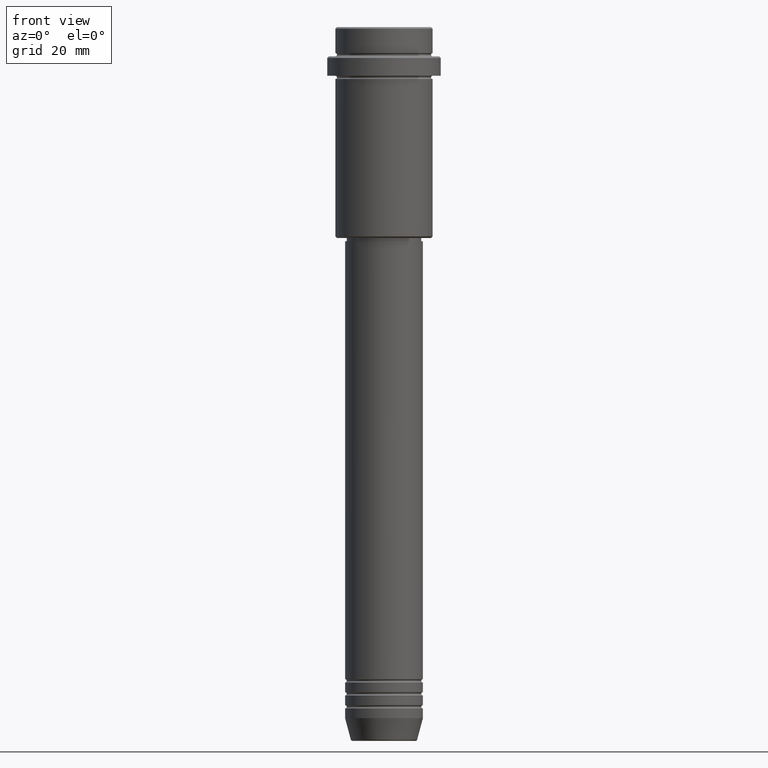
[diagram: clean part render]
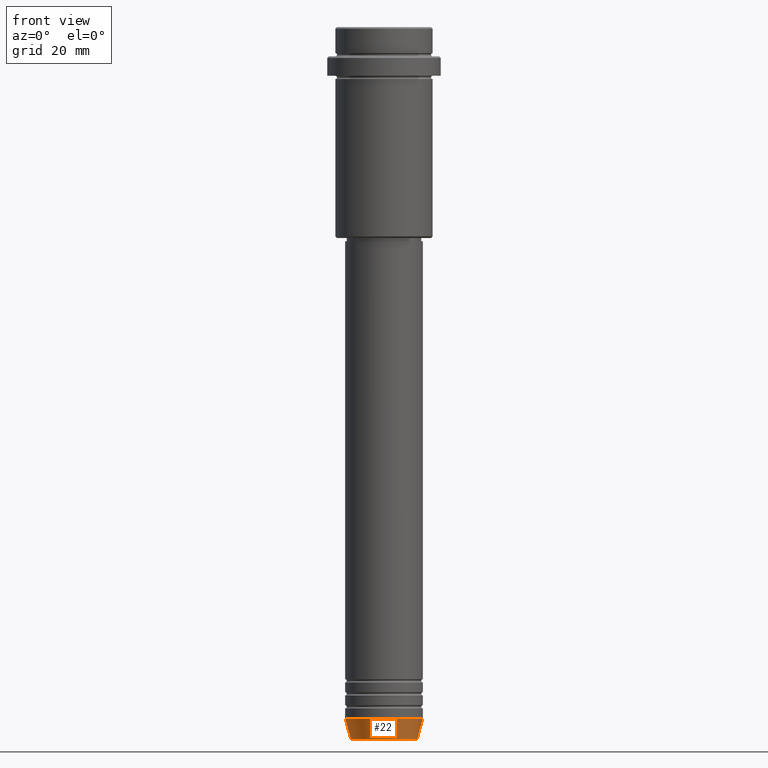
[diagram: same view with one face highlighted and labeled with its STEP entity id]
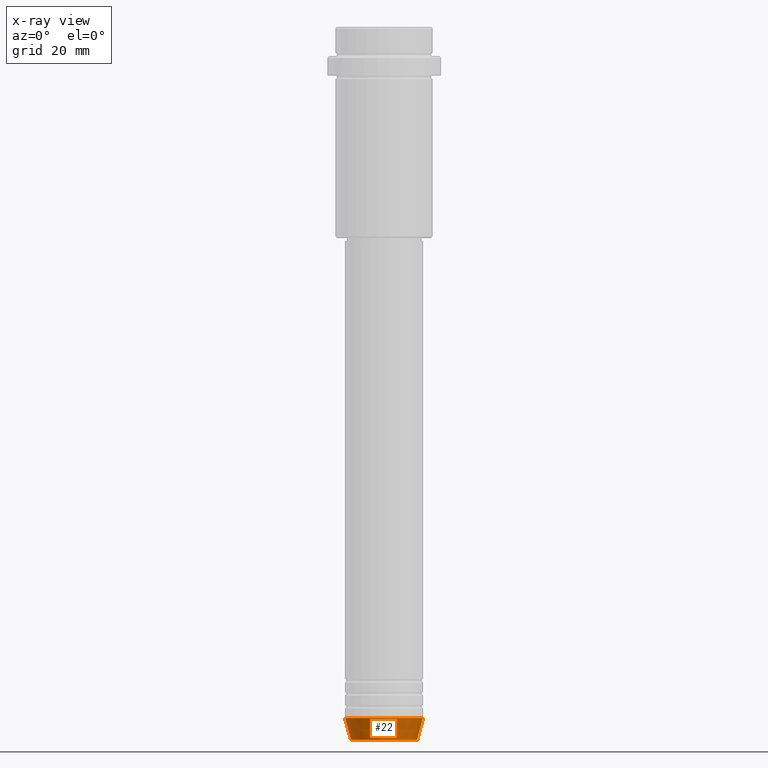
[diagram: x-ray of the same camera — body ghosted, the highlighted face saturated]
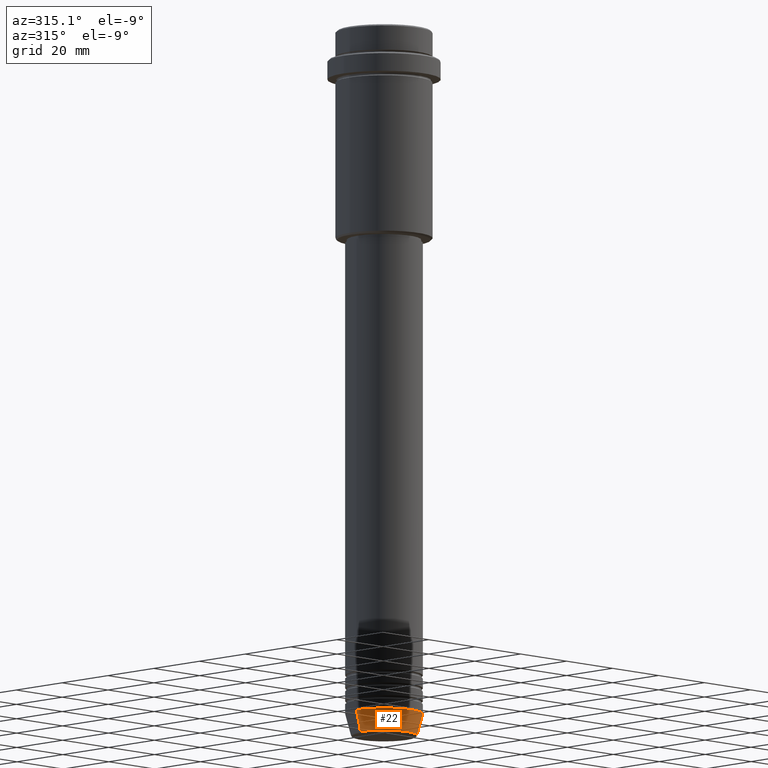
[diagram: same view with one face highlighted and labeled with its STEP entity id]
A machine part, front view. The second image highlights one B-rep face of the part: STEP entity #22.
The next image is the same camera in x-ray: the body ghosted, the highlighted face saturated — about 0% of this face is hidden behind the body in this view.
A second angle (auxiliary view) of the same face is appended — the face is thin or edge-on in the first view.
In plain terms, the highlighted conical surface has half-angle 15 deg.
Its self-contained STEP definition (entity closure, byte-faithful):
#22 = ADVANCED_FACE ( 'NONE', ( #596 ), #817, .T. ) ;
#77 = CARTESIAN_POINT ( 'NONE',  ( -12.00000000000000000, 1.469576158976823947E-15, -213.0000000000000284 ) ) ;
#135 = DIRECTION ( 'NONE',  ( -0.000000000000000000, -0.000000000000000000, 1.000000000000000000 ) ) ;
#147 = CARTESIAN_POINT ( 'NONE',  ( -12.00000000000000000, 1.469576158976823947E-15, -213.0000000000000284 ) ) ;
#159 = LINE ( 'NONE', #147, #631 ) ;
#173 = VERTEX_POINT ( 'NONE', #941 ) ;
#179 = EDGE_LOOP ( 'NONE', ( #1278, #845, #630, #1275 ) ) ;
#236 = DIRECTION ( 'NONE',  ( 1.000000000000000000, 0.000000000000000000, 0.000000000000000000 ) ) ;
#256 = AXIS2_PLACEMENT_3D ( 'NONE', #1133, #1258, #1012 ) ;
#268 = DIRECTION ( 'NONE',  ( -0.2588190451025205174, 3.169619151431761243E-17, 0.9659258262890684232 ) ) ;
#288 = CARTESIAN_POINT ( 'NONE',  ( -10.22365507213720015, 1.360806402472383139E-15, -219.6294095225512706 ) ) ;
#317 = CARTESIAN_POINT ( 'NONE',  ( 0.000000000000000000, 0.000000000000000000, -219.6294095225512706 ) ) ;
#363 = CARTESIAN_POINT ( 'NONE',  ( 12.00000000000000000, 0.000000000000000000, -213.0000000000000284 ) ) ;
#556 = CARTESIAN_POINT ( 'NONE',  ( 12.00000000000000000, 0.000000000000000000, -213.0000000000000284 ) ) ;
#561 = CIRCLE ( 'NONE', #1354, 10.22365507213720015 ) ;
#569 = CARTESIAN_POINT ( 'NONE',  ( 0.000000000000000000, 0.000000000000000000, -213.0000000000000284 ) ) ;
#596 = FACE_OUTER_BOUND ( 'NONE', #179, .T. ) ;
#630 = ORIENTED_EDGE ( 'NONE', *, *, #1164, .T. ) ;
#631 = VECTOR ( 'NONE', #268, 1000.000000000000114 ) ;
#671 = LINE ( 'NONE', #556, #739 ) ;
#739 = VECTOR ( 'NONE', #1065, 1000.000000000000114 ) ;
#764 = AXIS2_PLACEMENT_3D ( 'NONE', #569, #135, #236 ) ;
#797 = EDGE_CURVE ( 'NONE', #1058, #1064, #159, .T. ) ;
#817 = CONICAL_SURFACE ( 'NONE', #256, 12.00000000000000000, 0.2617993877991491303 ) ;
#845 = ORIENTED_EDGE ( 'NONE', *, *, #1134, .T. ) ;
#941 = CARTESIAN_POINT ( 'NONE',  ( 10.22365507213720015, 0.000000000000000000, -219.6294095225512706 ) ) ;
#994 = VERTEX_POINT ( 'NONE', #363 ) ;
#1012 = DIRECTION ( 'NONE',  ( 1.000000000000000000, 0.000000000000000000, 0.000000000000000000 ) ) ;
#1058 = VERTEX_POINT ( 'NONE', #288 ) ;
#1064 = VERTEX_POINT ( 'NONE', #77 ) ;
#1065 = DIRECTION ( 'NONE',  ( 0.2588190451025205174, 0.000000000000000000, 0.9659258262890684232 ) ) ;
#1133 = CARTESIAN_POINT ( 'NONE',  ( 0.000000000000000000, 0.000000000000000000, -213.0000000000000284 ) ) ;
#1134 = EDGE_CURVE ( 'NONE', #1058, #173, #561, .T. ) ;
#1164 = EDGE_CURVE ( 'NONE', #173, #994, #671, .T. ) ;
#1204 = DIRECTION ( 'NONE',  ( 1.000000000000000000, 0.000000000000000000, 0.000000000000000000 ) ) ;
#1235 = EDGE_CURVE ( 'NONE', #1064, #994, #1260, .T. ) ;
#1258 = DIRECTION ( 'NONE',  ( -0.000000000000000000, -0.000000000000000000, 1.000000000000000000 ) ) ;
#1260 = CIRCLE ( 'NONE', #764, 12.00000000000000000 ) ;
#1275 = ORIENTED_EDGE ( 'NONE', *, *, #1235, .F. ) ;
#1278 = ORIENTED_EDGE ( 'NONE', *, *, #797, .F. ) ;
#1354 = AXIS2_PLACEMENT_3D ( 'NONE', #317, #1411, #1204 ) ;
#1411 = DIRECTION ( 'NONE',  ( -0.000000000000000000, -0.000000000000000000, 1.000000000000000000 ) ) ;